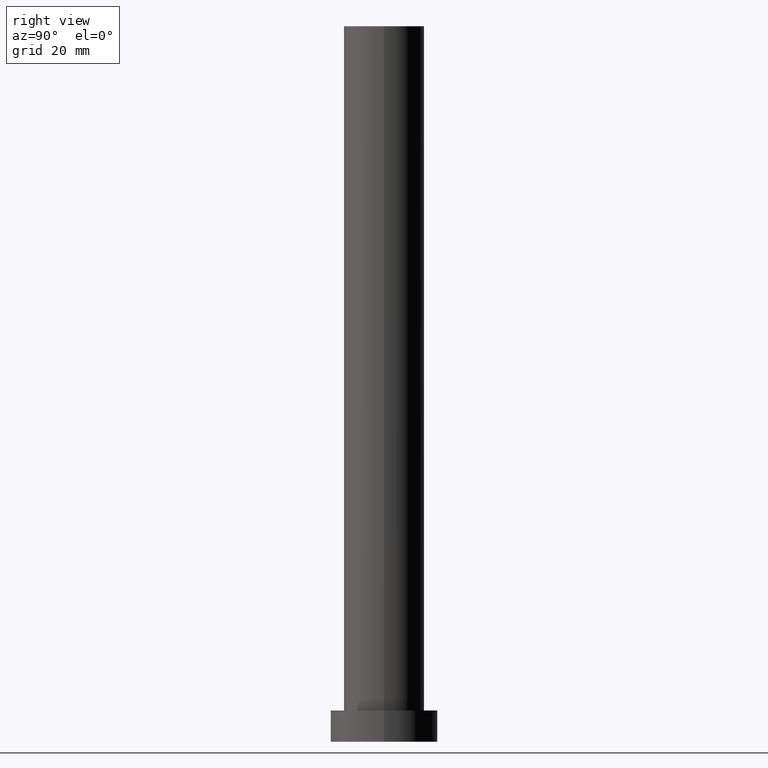
[diagram: clean part render]
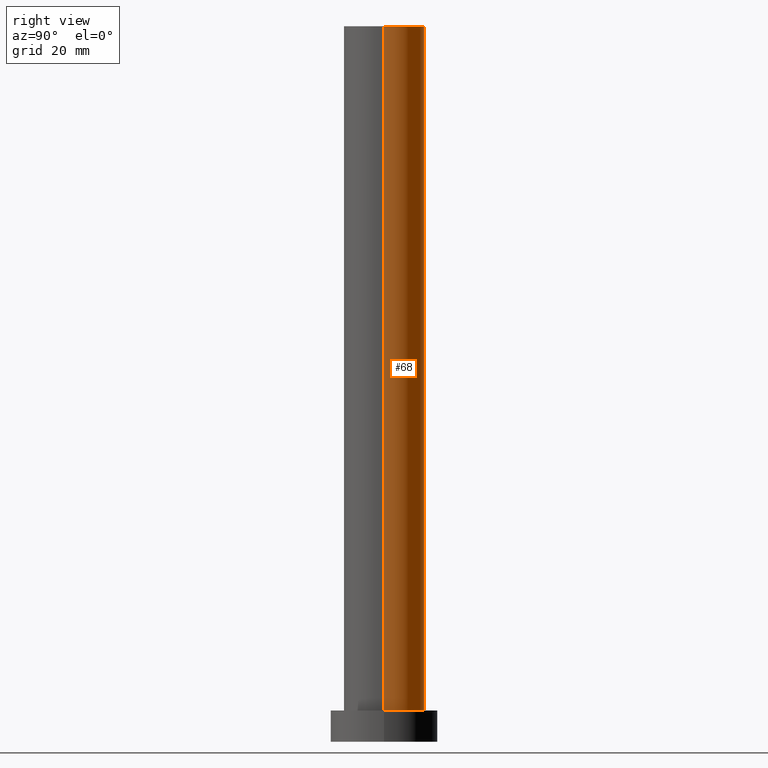
[diagram: same view with one face highlighted and labeled with its STEP entity id]
A machine part, right view. The second image highlights one B-rep face of the part: STEP entity #68.
In plain terms, the highlighted cylindrical surface (partial cylindrical patch) has radius 9 mm, axis along (-0, -0, -1).
Its self-contained STEP definition (entity closure, byte-faithful):
#1 = CARTESIAN_POINT ( 'NONE',  ( 9.000000000000000000, 1.102182119232617714E-15, 160.0000000000000000 ) ) ;
#4 = VECTOR ( 'NONE', #135, 1000.000000000000000 ) ;
#13 = DIRECTION ( 'NONE',  ( 0.000000000000000000, 0.000000000000000000, 1.000000000000000000 ) ) ;
#20 = AXIS2_PLACEMENT_3D ( 'NONE', #96, #249, #79 ) ;
#36 = ORIENTED_EDGE ( 'NONE', *, *, #62, .T. ) ;
#41 = LINE ( 'NONE', #1, #4 ) ;
#49 = ORIENTED_EDGE ( 'NONE', *, *, #143, .F. ) ;
#50 = DIRECTION ( 'NONE',  ( 0.000000000000000000, 0.000000000000000000, 1.000000000000000000 ) ) ;
#56 = DIRECTION ( 'NONE',  ( -0.000000000000000000, -0.000000000000000000, -1.000000000000000000 ) ) ;
#58 = CARTESIAN_POINT ( 'NONE',  ( -9.000000000000000000, 0.000000000000000000, 160.0000000000000000 ) ) ;
#62 = EDGE_CURVE ( 'NONE', #166, #245, #216, .T. ) ;
#68 = ADVANCED_FACE ( 'NONE', ( #176 ), #76, .T. ) ;
#76 = CYLINDRICAL_SURFACE ( 'NONE', #20, 9.000000000000000000 ) ;
#77 = EDGE_CURVE ( 'NONE', #110, #240, #167, .T. ) ;
#79 = DIRECTION ( 'NONE',  ( -1.000000000000000000, 0.000000000000000000, 0.000000000000000000 ) ) ;
#86 = VECTOR ( 'NONE', #56, 1000.000000000000000 ) ;
#93 = CARTESIAN_POINT ( 'NONE',  ( 0.000000000000000000, 0.000000000000000000, 7.000000000000000000 ) ) ;
#96 = CARTESIAN_POINT ( 'NONE',  ( 0.000000000000000000, 0.000000000000000000, 160.0000000000000000 ) ) ;
#110 = VERTEX_POINT ( 'NONE', #158 ) ;
#117 = CARTESIAN_POINT ( 'NONE',  ( -9.000000000000000000, 0.000000000000000000, 7.000000000000000000 ) ) ;
#130 = AXIS2_PLACEMENT_3D ( 'NONE', #93, #13, #170 ) ;
#135 = DIRECTION ( 'NONE',  ( -0.000000000000000000, -0.000000000000000000, -1.000000000000000000 ) ) ;
#139 = AXIS2_PLACEMENT_3D ( 'NONE', #230, #50, #208 ) ;
#143 = EDGE_CURVE ( 'NONE', #240, #245, #251, .T. ) ;
#149 = ORIENTED_EDGE ( 'NONE', *, *, #253, .T. ) ;
#158 = CARTESIAN_POINT ( 'NONE',  ( 9.000000000000000000, 1.102182119232617714E-15, 160.0000000000000000 ) ) ;
#166 = VERTEX_POINT ( 'NONE', #252 ) ;
#167 = CIRCLE ( 'NONE', #139, 9.000000000000000000 ) ;
#169 = ORIENTED_EDGE ( 'NONE', *, *, #77, .F. ) ;
#170 = DIRECTION ( 'NONE',  ( 1.000000000000000000, 0.000000000000000000, 0.000000000000000000 ) ) ;
#176 = FACE_OUTER_BOUND ( 'NONE', #236, .T. ) ;
#208 = DIRECTION ( 'NONE',  ( 1.000000000000000000, 0.000000000000000000, 0.000000000000000000 ) ) ;
#215 = CARTESIAN_POINT ( 'NONE',  ( -9.000000000000000000, 0.000000000000000000, 160.0000000000000000 ) ) ;
#216 = CIRCLE ( 'NONE', #130, 9.000000000000000000 ) ;
#230 = CARTESIAN_POINT ( 'NONE',  ( 0.000000000000000000, 0.000000000000000000, 160.0000000000000000 ) ) ;
#236 = EDGE_LOOP ( 'NONE', ( #169, #149, #36, #49 ) ) ;
#240 = VERTEX_POINT ( 'NONE', #215 ) ;
#245 = VERTEX_POINT ( 'NONE', #117 ) ;
#249 = DIRECTION ( 'NONE',  ( -0.000000000000000000, -0.000000000000000000, -1.000000000000000000 ) ) ;
#251 = LINE ( 'NONE', #58, #86 ) ;
#252 = CARTESIAN_POINT ( 'NONE',  ( 9.000000000000000000, 1.102182119232617714E-15, 7.000000000000000000 ) ) ;
#253 = EDGE_CURVE ( 'NONE', #110, #166, #41, .T. ) ;